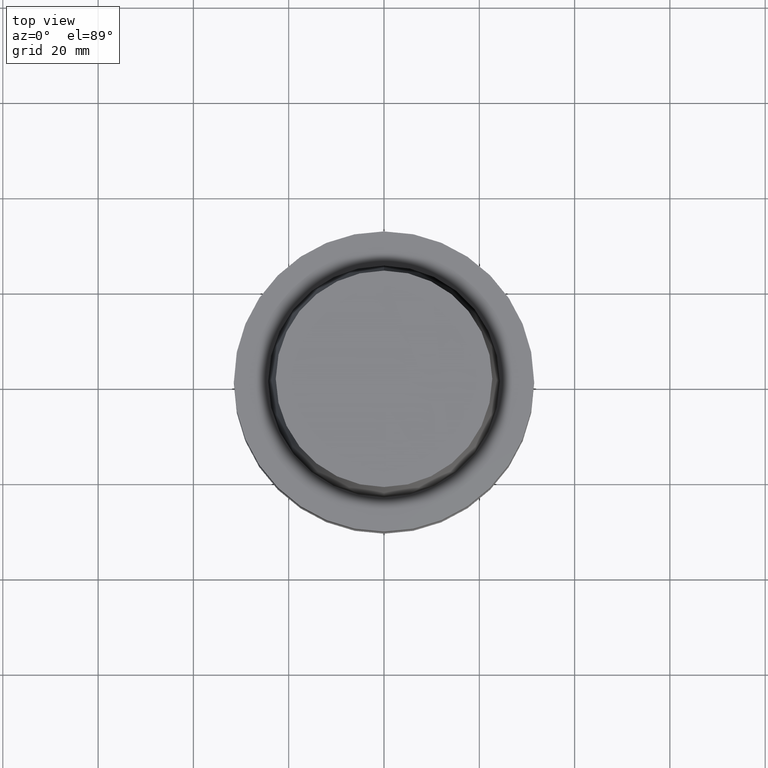
[diagram: clean part render]
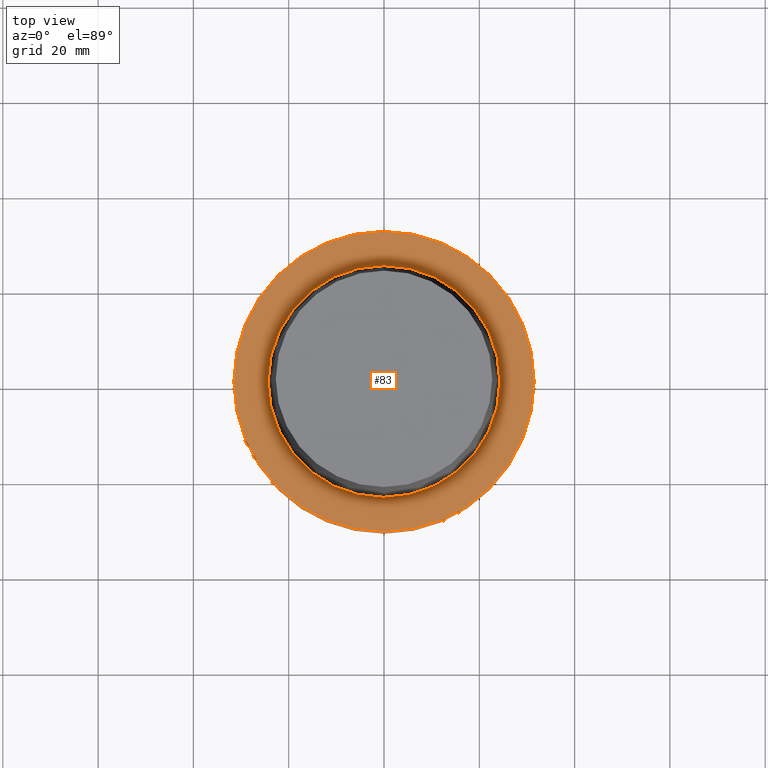
[diagram: same view with one face highlighted and labeled with its STEP entity id]
A machine part, top view. The second image highlights one B-rep face of the part: STEP entity #83.
In plain terms, the highlighted planar face has unit normal (-0, -0, 1).
Its self-contained STEP definition (entity closure, byte-faithful):
#83=ADVANCED_FACE('',(#116,#117),#118,.T.);
#116=FACE_OUTER_BOUND('',#165,.T.);
#117=FACE_BOUND('',#166,.T.);
#118=PLANE('',#167);
#165=EDGE_LOOP('',(#230));
#166=EDGE_LOOP('',(#231));
#167=AXIS2_PLACEMENT_3D('',#232,#233,#234);
#230=ORIENTED_EDGE('',*,*,#282,.F.);
#231=ORIENTED_EDGE('',*,*,#283,.T.);
#232=CARTESIAN_POINT('',(-3.40924878510528E-031,27.907500000104,3.36768305473321E-015));
#233=DIRECTION('',(-6.12323399573677E-017,-1.08546795432774E-016,1.0));
#234=DIRECTION('',(1.14737270099915E-032,-1.0,-1.08546795432774E-016));
#282=EDGE_CURVE('',#306,#306,#307,.T.);
#283=EDGE_CURVE('',#308,#308,#309,.T.);
#306=VERTEX_POINT('',#338);
#307=CIRCLE('',#339,31.5);
#308=VERTEX_POINT('',#340);
#309=CIRCLE('',#341,24.3150000002079);
#338=CARTESIAN_POINT('',(-3.8214424279273E-031,31.5,3.75763741731416E-015));
#339=AXIS2_PLACEMENT_3D('',#378,#379,#380);
#340=CARTESIAN_POINT('',(-2.99705514228327E-031,24.3150000002079,2.97772869215225E-015));
#341=AXIS2_PLACEMENT_3D('',#381,#382,#383);
#378=CARTESIAN_POINT('',(0.0,0.0,0.0));
#379=DIRECTION('',(6.12323399573677E-017,1.22464679914735E-016,-1.0));
#380=DIRECTION('',(-1.23259516440783E-032,1.0,1.22464679914735E-016));
#381=CARTESIAN_POINT('',(0.0,0.0,0.0));
#382=DIRECTION('',(6.12323399573677E-017,1.22464679914735E-016,-1.0));
#383=DIRECTION('',(-1.23259516440783E-032,1.0,1.22464679914735E-016));